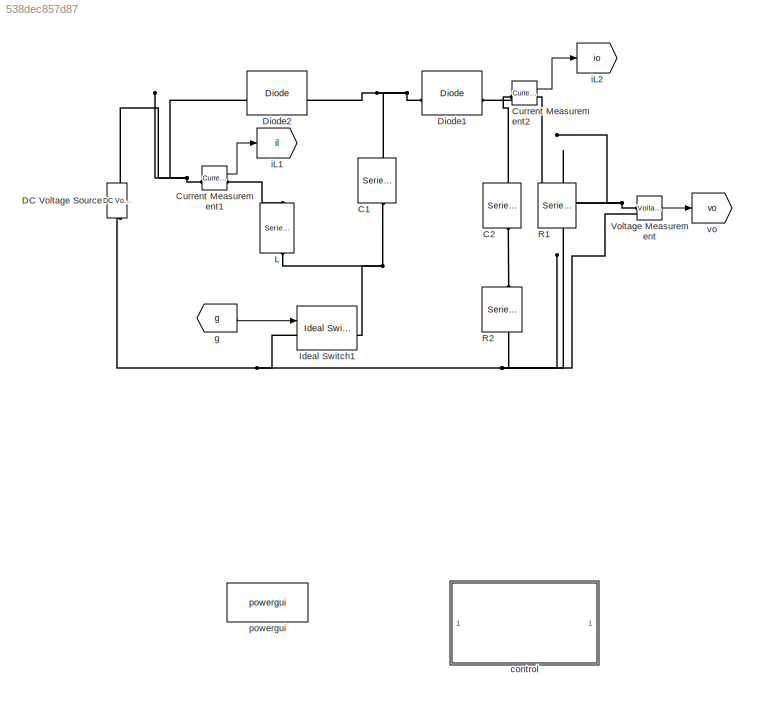
MODEL slx_538dec857d87
KIND model
CONFIG AbsTol = auto
CONFIG EnableMultiTasking = off
CONFIG FixedStep = auto
CONFIG MaxStep = auto
CONFIG MinStep = auto
CONFIG RelTol = 1e-3
CONFIG SampleTimeConstraint = Unconstrained
CONFIG SolverName = VariableStepAuto
CONFIG StartTime = 0.0
CONFIG StopTime = Tend
BLOCK [Reference] C1  REF=spsSeriesRLCBranchLib/Series RLC Branch
  LibrarySourceBlock = sps_lib/Passives/Series RLC Branch
  NameLocation = left
  SourceBlock = spsSeriesRLCBranchLib/Series RLC Branch
  SourceType = Series RLC Branch
BLOCK [Reference] C2  REF=spsSeriesRLCBranchLib/Series RLC Branch
  LibrarySourceBlock = sps_lib/Passives/Series RLC Branch
  NameLocation = left
  SourceBlock = spsSeriesRLCBranchLib/Series RLC Branch
  SourceType = Series RLC Branch
BLOCK [Reference] Current Measurement1  REF=spsCurrentMeasurementLib/Current Measurement
  LibrarySourceBlock = sps_lib/Sensors and Measurements/Current Measurement
  SourceBlock = spsCurrentMeasurementLib/Current Measurement
  SourceType = Current Measurement
  UserDataPersistent = on
BLOCK [Reference] Current Measurement2  REF=spsCurrentMeasurementLib/Current Measurement
  LibrarySourceBlock = sps_lib/Sensors and Measurements/Current Measurement
  SourceBlock = spsCurrentMeasurementLib/Current Measurement
  SourceType = Current Measurement
  UserDataPersistent = on
BLOCK [Reference] DC Voltage Source  REF=spsDCVoltageSourceLib/DC Voltage Source
  LibrarySourceBlock = sps_lib/Sources/DC Voltage Source
  SourceBlock = spsDCVoltageSourceLib/DC Voltage Source
  SourceType = DC Voltage Source
BLOCK [Reference] Diode1  REF=spsDiodeLib/Diode
  LibrarySourceBlock = sps_lib/Power Electronics/Diode
  SourceBlock = spsDiodeLib/Diode
  SourceType = Diode
BLOCK [Reference] Diode2  REF=spsDiodeLib/Diode
  LibrarySourceBlock = sps_lib/Power Electronics/Diode
  SourceBlock = spsDiodeLib/Diode
  SourceType = Diode
BLOCK [Reference] Ideal Switch1  REF=spsIdealSwitchLib/Ideal Switch
  LibrarySourceBlock = sps_lib/Power Electronics/Ideal Switch
  SourceBlock = spsIdealSwitchLib/Ideal Switch
  SourceType = Ideal Switch
BLOCK [Reference] L  REF=spsSeriesRLCBranchLib/Series RLC Branch
  LibrarySourceBlock = sps_lib/Passives/Series RLC Branch
  NameLocation = left
  SourceBlock = spsSeriesRLCBranchLib/Series RLC Branch
  SourceType = Series RLC Branch
BLOCK [Reference] R1  REF=spsSeriesRLCBranchLib/Series RLC Branch
  LibrarySourceBlock = sps_lib/Passives/Series RLC Branch
  NameLocation = left
  SourceBlock = spsSeriesRLCBranchLib/Series RLC Branch
  SourceType = Series RLC Branch
BLOCK [Reference] R2  REF=spsSeriesRLCBranchLib/Series RLC Branch
  LibrarySourceBlock = sps_lib/Passives/Series RLC Branch
  NameLocation = left
  SourceBlock = spsSeriesRLCBranchLib/Series RLC Branch
  SourceType = Series RLC Branch
BLOCK [Reference] Voltage Measurement  REF=spsVoltageMeasurementLib/Voltage Measurement
  LibrarySourceBlock = sps_lib/Sensors and Measurements/Voltage Measurement
  SourceBlock = spsVoltageMeasurementLib/Voltage Measurement
  SourceType = Voltage Measurement
  UserDataPersistent = on
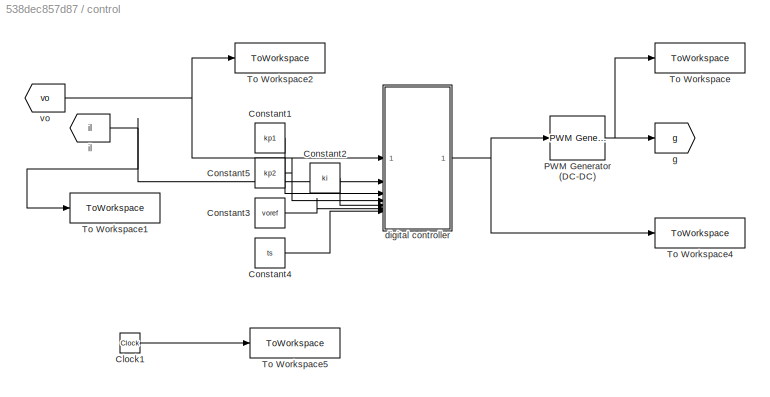
BLOCK [SubSystem] control
BLOCK [Clock] control/Clock1
BLOCK [Constant] control/Constant1
  Value = kp1
BLOCK [Constant] control/Constant2
  Value = ki
BLOCK [Constant] control/Constant3
  Value = voref
BLOCK [Constant] control/Constant4
  Value = ts
BLOCK [Constant] control/Constant5
  Value = kp2
BLOCK [Reference] control/PWM Generator (DC-DC)  REF=spsPWMGeneratorDCDCLib/PWM Generator
(DC-DC)
  SourceBlock = spsPWMGeneratorDCDCLib/PWM Generator\n(DC-DC)
  SourceType = PWM Generator (DC-DC)
BLOCK [ToWorkspace] control/To Workspace
  FixptAsFi = on
  MaxDataPoints = inf
  SampleTime = ts
  VariableName = g
BLOCK [ToWorkspace] control/To Workspace1
  FixptAsFi = on
  MaxDataPoints = inf
  SampleTime = ts
  VariableName = il
BLOCK [ToWorkspace] control/To Workspace2
  FixptAsFi = on
  MaxDataPoints = inf
  SampleTime = ts
  VariableName = vo
BLOCK [ToWorkspace] control/To Workspace4
  FixptAsFi = on
  MaxDataPoints = inf
  SampleTime = ts
  VariableName = d
BLOCK [ToWorkspace] control/To Workspace5
  FixptAsFi = on
  MaxDataPoints = inf
  SampleTime = ts
  VariableName = t
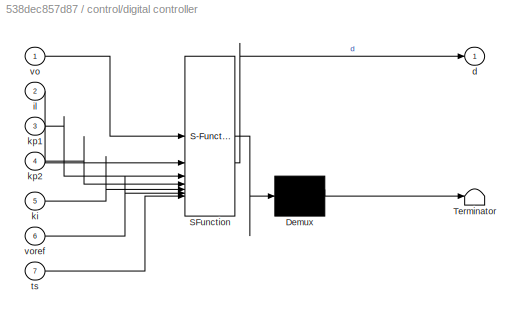
BLOCK [SubSystem] control/digital controller
  ErrorFcn = Stateflow.Translate.translate
  PermitHierarchicalResolution = ExplicitOnly
  SFBlockType = MATLAB Function
  TreatAsAtomicUnit = on
BLOCK [Demux] control/digital controller/ Demux 
  Outputs = 1
BLOCK [S-Function] control/digital controller/ SFunction 
  EnableBusSupport = on
  FunctionName = sf_sfun
  PortCounts = [7 2]
  SFcnIsStateOwnerBlock = off
  SFunctionDeploymentMode = off
  Tag = Stateflow S-Function 2
BLOCK [Terminator] control/digital controller/ Terminator 
BLOCK [Outport] control/digital controller/d
BLOCK [Inport] control/digital controller/il
  Port = 2
BLOCK [Inport] control/digital controller/ki
  Port = 5
BLOCK [Inport] control/digital controller/kp1
  Port = 3
BLOCK [Inport] control/digital controller/kp2
  Port = 4
BLOCK [Inport] control/digital controller/ts
  Port = 7
BLOCK [Inport] control/digital controller/vo
BLOCK [Inport] control/digital controller/voref
  Port = 6
BLOCK [Goto] control/g
  GotoTag = g
  TagVisibility = global
BLOCK [From] control/il
  GotoTag = il
  TagVisibility = global
BLOCK [From] control/vo
  GotoTag = vo
  TagVisibility = global
BLOCK [From] g
  GotoTag = g
  TagVisibility = global
BLOCK [Goto] iL1
  GotoTag = il
  TagVisibility = global
BLOCK [Goto] iL2
  GotoTag = io
  TagVisibility = global
BLOCK [Reference] powergui  REF=spspowerguiLib/powergui
  LibrarySourceBlock = sps_lib/powergui
  Priority = 1
  SourceBlock = spspowerguiLib/powergui
  SourceType = PSB option menu block
BLOCK [Goto] vo
  GotoTag = vo
  TagVisibility = global
LINE Current Measurement1:1 -> iL1:1
LINE Current Measurement2:1 -> iL2:1
LINE Voltage Measurement:1 -> vo:1
LINE control/Clock1:1 -> control/To Workspace5:1
LINE control/Constant1:1 -> control/digital controller:3
LINE control/Constant2:1 -> control/digital controller:5
LINE control/Constant3:1 -> control/digital controller:6
LINE control/Constant4:1 -> control/digital controller:7
LINE control/Constant5:1 -> control/digital controller:4
NET control/PWM Generator (DC-DC):1 -> control/To Workspace:1, control/g:1
NET control/digital controller:1 -> control/PWM Generator (DC-DC):1, control/To Workspace4:1
NET control/il:1 -> control/To Workspace1:1, control/digital controller:2
NET control/vo:1 -> control/To Workspace2:1, control/digital controller:1
LINE g:1 -> Ideal Switch1:1
PNET net1: C1:LConn1 -- Diode1:LConn1 -- Diode2:RConn1
PNET net2: C1:RConn1 -- Ideal Switch1:RConn1 -- L:RConn1
PNET net3: C2:LConn1 -- Current Measurement2:LConn1 -- Diode1:RConn1
PLINE C2:RConn1 -- R2:LConn1
PNET net4: Current Measurement1:LConn1 -- DC Voltage Source:RConn1 -- Diode2:LConn1
PLINE Current Measurement1:RConn1 -- L:LConn1
PNET net5: Current Measurement2:RConn1 -- R1:LConn1 -- Voltage Measurement:LConn1
PNET net6: DC Voltage Source:LConn1 -- Ideal Switch1:LConn1 -- R1:RConn1 -- R2:RConn1 -- Voltage Measurement:LConn2
note: NET lines group one-source signal fan-out (src -> all destinations, sorted); 1:1 wires keep LINE; PNET lines group multi-terminal physical nets as a canonical sorted terminal list (undirected conserving connections); 2-terminal nets keep the pairwise PLINE form
CHART control/digital controller states=1 transitions=1
  STATE_LABEL 'eML_blk_kernel()'
  STATE_LABEL 'SCRIPT:\nfunction d = fcn(vo,il,kp1,kp2,ki,voref,ts)\n\npersistent int_1\nif isempty(int_1)\n    int_1=0;\nend\n\nint=int_1+ki*ts*(voref-vo);\nilref=kp1*(voref-vo)+int;\n\nd=kp2*(ilref-il);\n\nif (d>1)\n    int=int_1; % anti-windup\n    d=1;\nend\nif (d<0)\n    int=int_1; % anti-windup\n    d=0;\nend\nint_1=int;'
CHART  states=0 transitions=0
